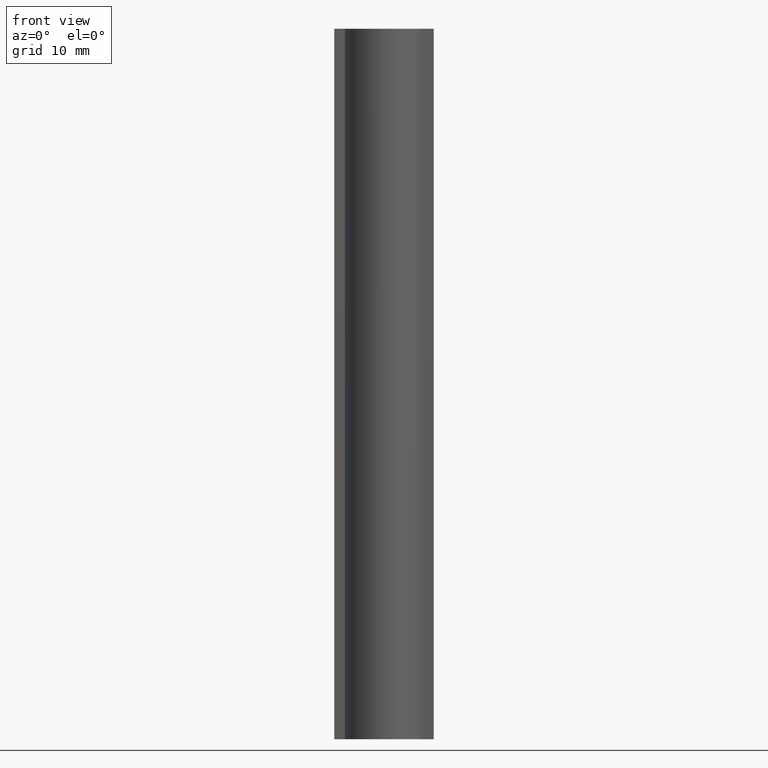
[diagram: clean part render]
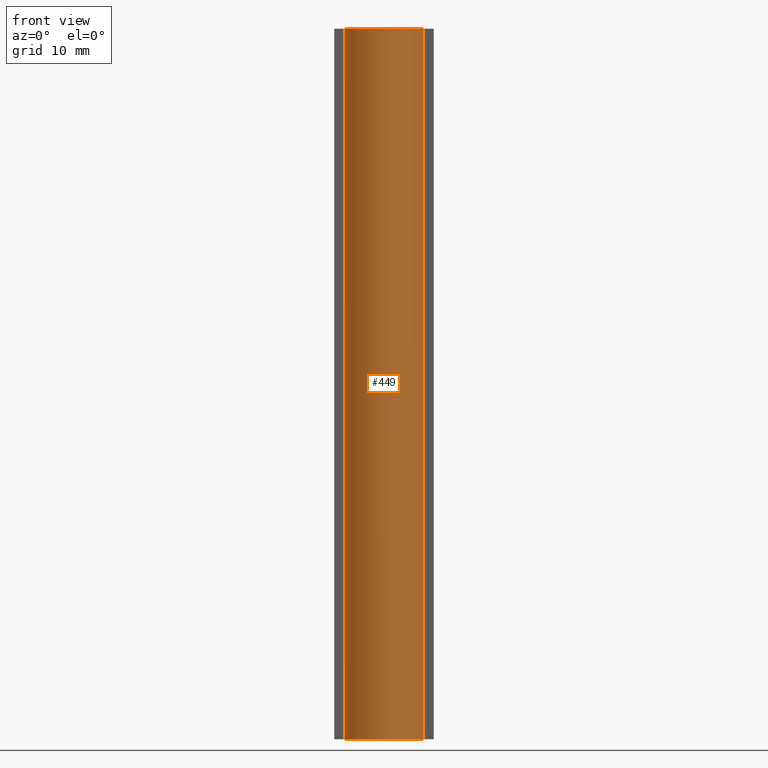
[diagram: same view with one face highlighted and labeled with its STEP entity id]
A machine part, front view. The second image highlights one B-rep face of the part: STEP entity #449.
In plain terms, the highlighted cylindrical surface (partial cylindrical patch) has radius 5.684 mm, axis along (0, 0, 1).
Its self-contained STEP definition (entity closure, byte-faithful):
#51=FACE_OUTER_BOUND('',#75,.T.);
#75=EDGE_LOOP('',(#387,#388,#389,#390));
#84=LINE('',#632,#133);
#124=LINE('',#733,#173);
#133=VECTOR('',#506,100.);
#173=VECTOR('',#600,100.);
#187=CIRCLE('',#470,5.68401094873188);
#192=CIRCLE('',#488,5.68401094873188);
#197=VERTEX_POINT('',#629);
#198=VERTEX_POINT('',#631);
#215=VERTEX_POINT('',#672);
#232=VERTEX_POINT('',#731);
#240=EDGE_CURVE('',#197,#198,#84,.T.);
#261=EDGE_CURVE('',#215,#197,#187,.T.);
#291=EDGE_CURVE('',#215,#232,#124,.T.);
#292=EDGE_CURVE('',#198,#232,#192,.T.);
#387=ORIENTED_EDGE('',*,*,#261,.F.);
#388=ORIENTED_EDGE('',*,*,#291,.T.);
#389=ORIENTED_EDGE('',*,*,#292,.F.);
#390=ORIENTED_EDGE('',*,*,#240,.F.);
#430=CYLINDRICAL_SURFACE('',#487,5.68401094873188);
#449=ADVANCED_FACE('',(#51),#430,.T.);
#470=AXIS2_PLACEMENT_3D('',#674,#541,#542);
#487=AXIS2_PLACEMENT_3D('',#734,#601,#602);
#488=AXIS2_PLACEMENT_3D('',#735,#603,#604);
#506=DIRECTION('',(0.,0.,1.));
#541=DIRECTION('center_axis',(0.,0.,-1.));
#542=DIRECTION('ref_axis',(0.967626566804392,0.25238626589881,0.));
#600=DIRECTION('',(0.,0.,1.));
#601=DIRECTION('center_axis',(0.,0.,1.));
#602=DIRECTION('ref_axis',(0.967626566804392,0.25238626589881,0.));
#603=DIRECTION('center_axis',(0.,0.,1.));
#604=DIRECTION('ref_axis',(0.967626566804392,0.25238626589881,0.));
#629=CARTESIAN_POINT('',(-5.5,-4.75055534994651,0.));
#631=CARTESIAN_POINT('',(-5.5,-4.75055534994651,100.));
#632=CARTESIAN_POINT('',(-5.5,-4.75055534994651,0.));
#672=CARTESIAN_POINT('',(5.5,-4.75055534994651,0.));
#674=CARTESIAN_POINT('Origin',(0.,-3.31598905126813,0.));
#731=CARTESIAN_POINT('',(5.5,-4.75055534994651,100.));
#733=CARTESIAN_POINT('',(5.5,-4.75055534994651,0.));
#734=CARTESIAN_POINT('Origin',(0.,-3.31598905126813,0.));
#735=CARTESIAN_POINT('Origin',(0.,-3.31598905126813,100.));